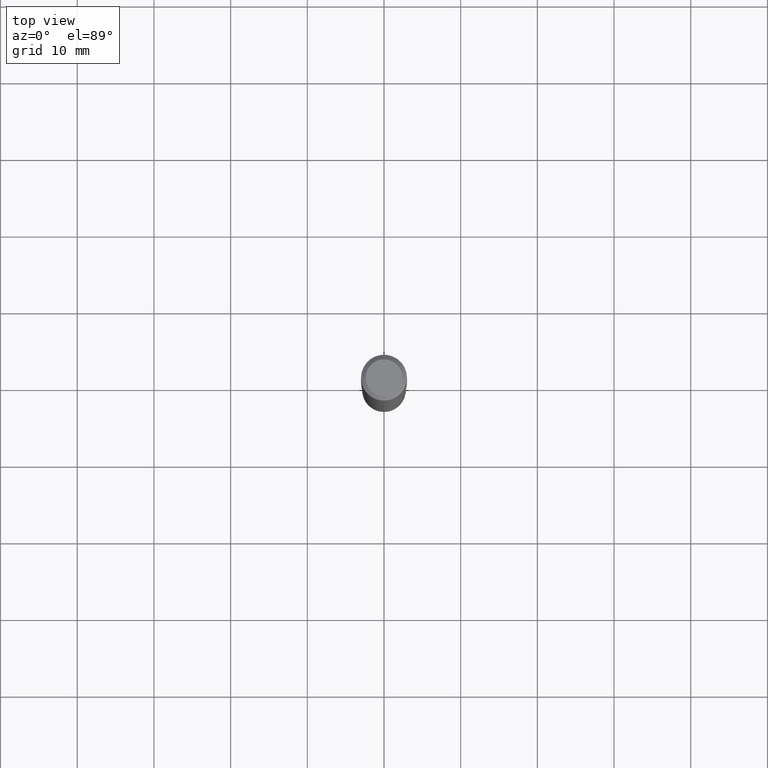
[diagram: clean part render]
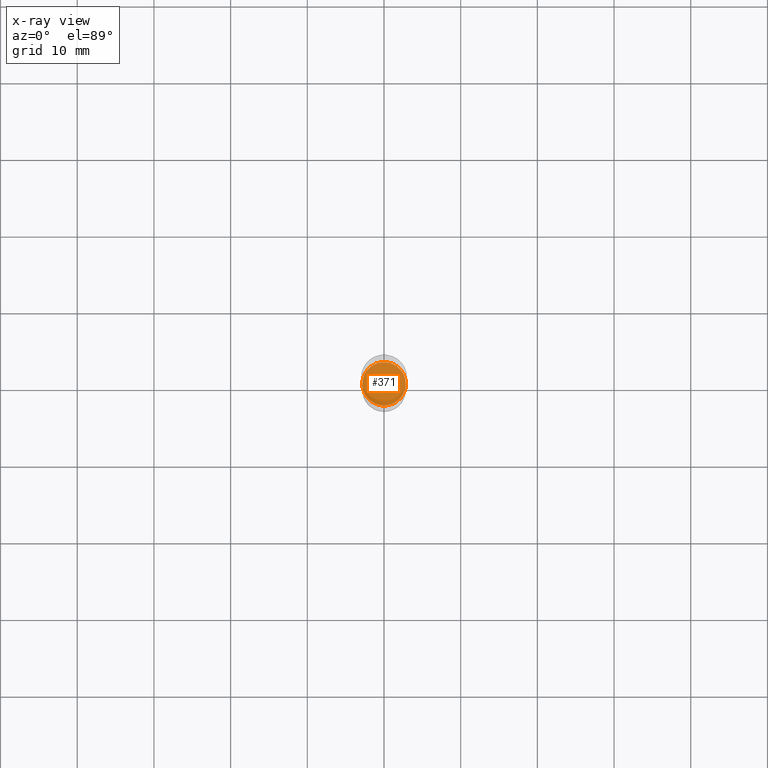
[diagram: x-ray — body ghosted, one internal face saturated and labeled with its STEP entity id]
A machine part, top view, then the same camera in x-ray: the body is ghosted and one INTERNAL B-rep face — a face not visible from any outside direction — is saturated and labeled: STEP entity #371.
In plain terms, the highlighted planar face has unit normal (-0, 0, 1).
Its self-contained STEP definition (entity closure, byte-faithful):
#6 = AXIS2_PLACEMENT_3D ( 'NONE', #460, #45, #273 ) ;
#31 = AXIS2_PLACEMENT_3D ( 'NONE', #358, #52, #57 ) ;
#45 = DIRECTION ( 'NONE',  ( -2.445468806185136597E-29, 3.491481338843145583E-15, 1.000000000000000000 ) ) ;
#52 = DIRECTION ( 'NONE',  ( -2.438088387897960049E-29, 3.491481338843145188E-15, 1.000000000000000000 ) ) ;
#57 = DIRECTION ( 'NONE',  ( 1.000000000000000000, -6.982962677686265922E-15, 4.876176775795935793E-29 ) ) ;
#68 = CIRCLE ( 'NONE', #6, 0.1116999999999999937 ) ;
#94 = ORIENTED_EDGE ( 'NONE', *, *, #184, .F. ) ;
#120 = AXIS2_PLACEMENT_3D ( 'NONE', #368, #408, #138 ) ;
#138 = DIRECTION ( 'NONE',  ( 1.000000000000000000, -6.982962677686262766E-15, 0.000000000000000000 ) ) ;
#150 = CARTESIAN_POINT ( 'NONE',  ( 0.1116999999999999937, -7.240634000492913769E-15, -1.850400000000000489 ) ) ;
#164 = PLANE ( 'NONE',  #31 ) ;
#184 = EDGE_CURVE ( 'NONE', #359, #316, #337, .T. ) ;
#203 = FACE_OUTER_BOUND ( 'NONE', #392, .T. ) ;
#236 = ORIENTED_EDGE ( 'NONE', *, *, #428, .F. ) ;
#266 = CARTESIAN_POINT ( 'NONE',  ( -0.1116999999999999937, -5.664311606377215103E-15, -1.850400000000000489 ) ) ;
#273 = DIRECTION ( 'NONE',  ( 1.000000000000000000, -6.982962677686262766E-15, 0.000000000000000000 ) ) ;
#316 = VERTEX_POINT ( 'NONE', #266 ) ;
#337 = CIRCLE ( 'NONE', #120, 0.1116999999999999937 ) ;
#358 = CARTESIAN_POINT ( 'NONE',  ( 1.364938197707930567E-29, -1.098616216113784255E-14, -1.850400000000000489 ) ) ;
#359 = VERTEX_POINT ( 'NONE', #150 ) ;
#368 = CARTESIAN_POINT ( 'NONE',  ( 4.525095478964977954E-29, -6.460637069395358365E-15, -1.850400000000000489 ) ) ;
#371 = ADVANCED_FACE ( 'NONE', ( #203 ), #164, .F. ) ;
#392 = EDGE_LOOP ( 'NONE', ( #94, #236 ) ) ;
#408 = DIRECTION ( 'NONE',  ( -2.445468806185136597E-29, 3.491481338843145583E-15, 1.000000000000000000 ) ) ;
#428 = EDGE_CURVE ( 'NONE', #316, #359, #68, .T. ) ;
#460 = CARTESIAN_POINT ( 'NONE',  ( 4.525095478964977954E-29, -6.460637069395358365E-15, -1.850400000000000489 ) ) ;